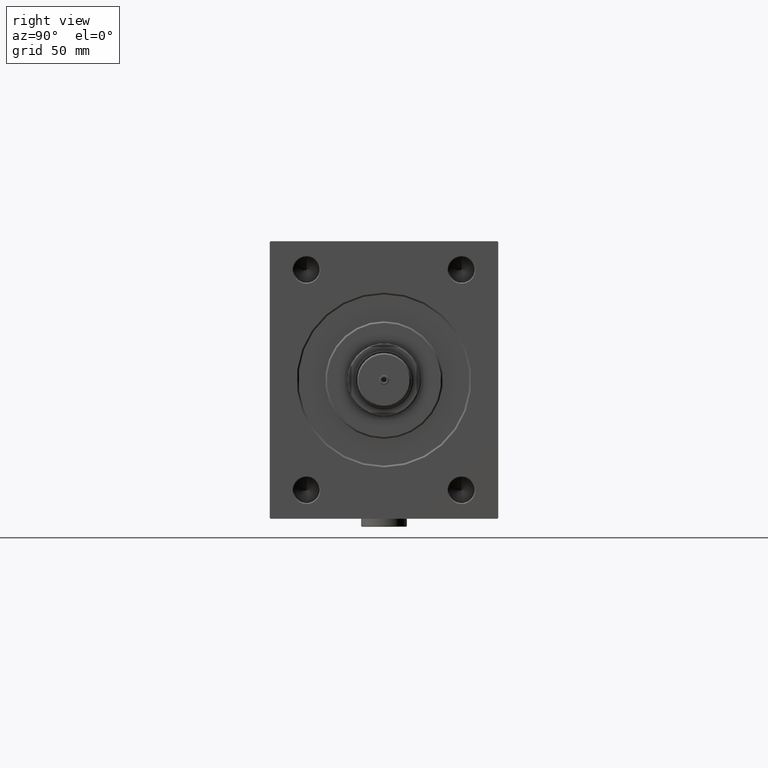
[diagram: clean part render]
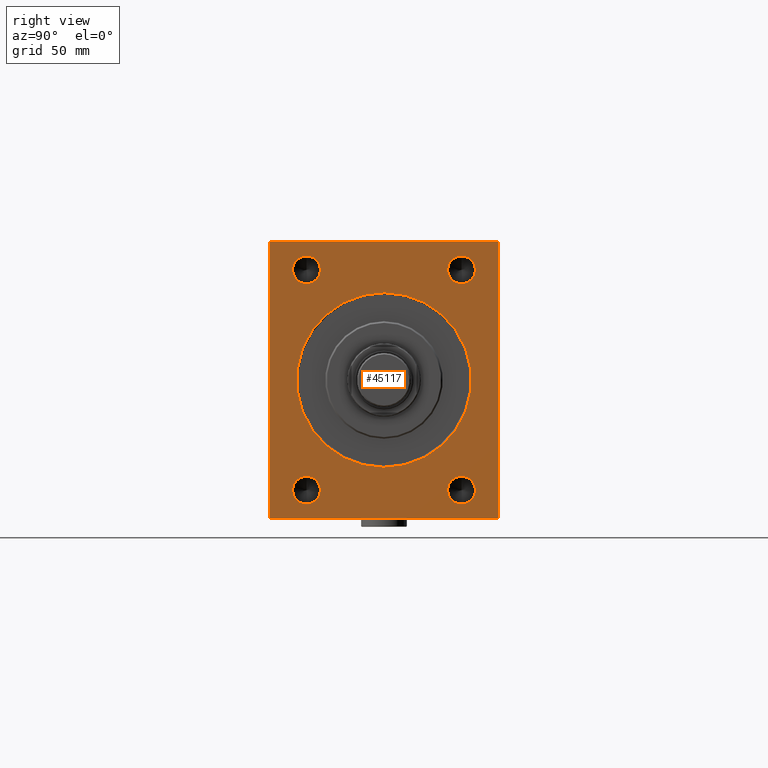
[diagram: same view with one face highlighted and labeled with its STEP entity id]
A machine part, right view. The second image highlights one B-rep face of the part: STEP entity #45117.
In plain terms, the highlighted planar face has unit normal (-1, 0, 0).
Its self-contained STEP definition (entity closure, byte-faithful):
#504 = CARTESIAN_POINT ( 'NONE',  ( 0.000000000000000000, 6.551860375438342259E-15, -53.50000000000002132 ) ) ;
#1245 = CARTESIAN_POINT ( 'NONE',  ( 0.000000000000000000, 69.50000000000007105, -85.00000000000001421 ) ) ;
#1451 = DIRECTION ( 'NONE',  ( 1.000000000000000000, 0.000000000000000000, 0.000000000000000000 ) ) ;
#2074 = CARTESIAN_POINT ( 'NONE',  ( 0.000000000000000000, -69.99999999999998579, 84.99999999999998579 ) ) ;
#2235 = AXIS2_PLACEMENT_3D ( 'NONE', #2305, #35380, #42531 ) ;
#2305 = CARTESIAN_POINT ( 'NONE',  ( 0.000000000000000000, -47.50000000000000000, -67.50000000000000000 ) ) ;
#2401 = EDGE_CURVE ( 'NONE', #9576, #45471, #21362, .T. ) ;
#2471 = CARTESIAN_POINT ( 'NONE',  ( 0.000000000000000000, -47.50000000000000000, -67.50000000000000000 ) ) ;
#2475 = EDGE_LOOP ( 'NONE', ( #38406, #47075 ) ) ;
#2644 = ORIENTED_EDGE ( 'NONE', *, *, #18650, .F. ) ;
#2695 = VERTEX_POINT ( 'NONE', #48386 ) ;
#2790 = PLANE ( 'NONE',  #19190 ) ;
#3066 = CIRCLE ( 'NONE', #10156, 8.500000000000063949 ) ;
#3119 = VERTEX_POINT ( 'NONE', #18852 ) ;
#3301 = CARTESIAN_POINT ( 'NONE',  ( 0.000000000000000000, -47.50000000000000000, -58.99999999999994316 ) ) ;
#3563 = VECTOR ( 'NONE', #3678, 1000.000000000000114 ) ;
#3678 = DIRECTION ( 'NONE',  ( -0.000000000000000000, 0.7071067811865573427, 0.7071067811865376918 ) ) ;
#5175 = CIRCLE ( 'NONE', #32718, 53.50000000000002132 ) ;
#5219 = ORIENTED_EDGE ( 'NONE', *, *, #28905, .T. ) ;
#5260 = CARTESIAN_POINT ( 'NONE',  ( 0.000000000000000000, 47.50000000000000000, 67.50000000000000000 ) ) ;
#5559 = DIRECTION ( 'NONE',  ( -0.000000000000000000, 0.7071067811865279218, -0.7071067811865672237 ) ) ;
#5811 = ORIENTED_EDGE ( 'NONE', *, *, #26820, .T. ) ;
#6160 = LINE ( 'NONE', #43878, #11089 ) ;
#6365 = ORIENTED_EDGE ( 'NONE', *, *, #30107, .T. ) ;
#6844 = VERTEX_POINT ( 'NONE', #16924 ) ;
#6990 = CIRCLE ( 'NONE', #2235, 8.500000000000063949 ) ;
#7164 = CARTESIAN_POINT ( 'NONE',  ( 0.000000000000000000, -47.50000000000000000, 58.99999999999994316 ) ) ;
#7228 = LINE ( 'NONE', #22512, #13605 ) ;
#7271 = EDGE_LOOP ( 'NONE', ( #6365, #12009 ) ) ;
#7465 = DIRECTION ( 'NONE',  ( 1.000000000000000000, 0.000000000000000000, 0.000000000000000000 ) ) ;
#8220 = EDGE_CURVE ( 'NONE', #26794, #41539, #26898, .T. ) ;
#8273 = ORIENTED_EDGE ( 'NONE', *, *, #8220, .T. ) ;
#8385 = CIRCLE ( 'NONE', #9203, 8.500000000000063949 ) ;
#8803 = EDGE_LOOP ( 'NONE', ( #41398, #44400 ) ) ;
#9203 = AXIS2_PLACEMENT_3D ( 'NONE', #5260, #24720, #39763 ) ;
#9576 = VERTEX_POINT ( 'NONE', #3301 ) ;
#9640 = DIRECTION ( 'NONE',  ( 1.000000000000000000, 0.000000000000000000, 0.000000000000000000 ) ) ;
#10100 = DIRECTION ( 'NONE',  ( 0.000000000000000000, -1.632680918566406300E-16, 1.000000000000000000 ) ) ;
#10156 = AXIS2_PLACEMENT_3D ( 'NONE', #31055, #1451, #16504 ) ;
#10788 = VECTOR ( 'NONE', #45765, 999.9999999999998863 ) ;
#10805 = CARTESIAN_POINT ( 'NONE',  ( 0.000000000000000000, 70.00000000000002842, -84.50000000000009948 ) ) ;
#11089 = VECTOR ( 'NONE', #10100, 1000.000000000000000 ) ;
#11290 = CARTESIAN_POINT ( 'NONE',  ( 0.000000000000000000, 0.000000000000000000, 0.000000000000000000 ) ) ;
#11921 = CIRCLE ( 'NONE', #40236, 8.500000000000063949 ) ;
#12009 = ORIENTED_EDGE ( 'NONE', *, *, #22874, .T. ) ;
#12605 = DIRECTION ( 'NONE',  ( 1.000000000000000000, 0.000000000000000000, 0.000000000000000000 ) ) ;
#12688 = VERTEX_POINT ( 'NONE', #504 ) ;
#12896 = CARTESIAN_POINT ( 'NONE',  ( 0.000000000000000000, -47.50000000000000000, 67.50000000000000000 ) ) ;
#13578 = DIRECTION ( 'NONE',  ( 0.000000000000000000, 0.000000000000000000, -1.000000000000000000 ) ) ;
#13605 = VECTOR ( 'NONE', #13916, 1000.000000000000000 ) ;
#13626 = CARTESIAN_POINT ( 'NONE',  ( 0.000000000000000000, -69.99999999999998579, -84.49999999999998579 ) ) ;
#13916 = DIRECTION ( 'NONE',  ( 0.000000000000000000, 1.000000000000000000, 0.000000000000000000 ) ) ;
#15153 = EDGE_CURVE ( 'NONE', #26870, #2695, #42807, .T. ) ;
#15689 = LINE ( 'NONE', #30718, #10788 ) ;
#16313 = CARTESIAN_POINT ( 'NONE',  ( 0.000000000000000000, -69.49999999999998579, -85.00000000000001421 ) ) ;
#16420 = DIRECTION ( 'NONE',  ( 0.000000000000000000, -1.000000000000000000, -1.982541115402065110E-16 ) ) ;
#16504 = DIRECTION ( 'NONE',  ( 0.000000000000000000, 0.000000000000000000, -1.000000000000000000 ) ) ;
#16666 = AXIS2_PLACEMENT_3D ( 'NONE', #2471, #9640, #17514 ) ;
#16672 = CARTESIAN_POINT ( 'NONE',  ( 0.000000000000000000, 69.50000000000008527, 85.00000000000001421 ) ) ;
#16696 = EDGE_CURVE ( 'NONE', #18371, #44730, #33762, .T. ) ;
#16924 = CARTESIAN_POINT ( 'NONE',  ( 0.000000000000000000, 47.50000000000000000, -76.00000000000007105 ) ) ;
#17104 = CIRCLE ( 'NONE', #47816, 8.500000000000063949 ) ;
#17262 = AXIS2_PLACEMENT_3D ( 'NONE', #12896, #46907, #21233 ) ;
#17514 = DIRECTION ( 'NONE',  ( 0.000000000000000000, 0.000000000000000000, -1.000000000000000000 ) ) ;
#17841 = DIRECTION ( 'NONE',  ( 0.000000000000000000, 0.000000000000000000, -1.000000000000000000 ) ) ;
#17990 = CARTESIAN_POINT ( 'NONE',  ( 0.000000000000000000, 69.50000000000008527, 85.00000000000001421 ) ) ;
#18371 = VERTEX_POINT ( 'NONE', #33778 ) ;
#18442 = DIRECTION ( 'NONE',  ( 0.000000000000000000, 0.000000000000000000, -1.000000000000000000 ) ) ;
#18650 = EDGE_CURVE ( 'NONE', #26870, #44730, #26018, .T. ) ;
#18658 = ORIENTED_EDGE ( 'NONE', *, *, #34836, .T. ) ;
#18802 = EDGE_CURVE ( 'NONE', #18371, #41539, #43033, .T. ) ;
#18852 = CARTESIAN_POINT ( 'NONE',  ( 0.000000000000000000, -47.50000000000000000, 76.00000000000007105 ) ) ;
#19190 = AXIS2_PLACEMENT_3D ( 'NONE', #44702, #7465, #17841 ) ;
#19391 = VECTOR ( 'NONE', #28222, 1000.000000000000000 ) ;
#19431 = VERTEX_POINT ( 'NONE', #7164 ) ;
#19537 = VERTEX_POINT ( 'NONE', #1245 ) ;
#19674 = VERTEX_POINT ( 'NONE', #10805 ) ;
#20175 = CIRCLE ( 'NONE', #24118, 8.500000000000063949 ) ;
#20793 = EDGE_CURVE ( 'NONE', #19674, #19537, #15689, .T. ) ;
#21212 = CARTESIAN_POINT ( 'NONE',  ( 0.000000000000000000, -69.49999999999998579, -85.00000000000001421 ) ) ;
#21233 = DIRECTION ( 'NONE',  ( 0.000000000000000000, 0.000000000000000000, -1.000000000000000000 ) ) ;
#21240 = CIRCLE ( 'NONE', #34630, 53.50000000000002132 ) ;
#21362 = CIRCLE ( 'NONE', #16666, 8.500000000000063949 ) ;
#21435 = CARTESIAN_POINT ( 'NONE',  ( 0.000000000000000000, 47.50000000000000000, 67.50000000000000000 ) ) ;
#22017 = FACE_BOUND ( 'NONE', #8803, .T. ) ;
#22208 = EDGE_CURVE ( 'NONE', #12688, #36925, #5175, .T. ) ;
#22247 = FACE_BOUND ( 'NONE', #2475, .T. ) ;
#22310 = CARTESIAN_POINT ( 'NONE',  ( 0.000000000000000000, 70.00000000000000000, 85.00000000000001421 ) ) ;
#22512 = CARTESIAN_POINT ( 'NONE',  ( 0.000000000000000000, -69.99999999999998579, -85.00000000000001421 ) ) ;
#22874 = EDGE_CURVE ( 'NONE', #6844, #31263, #20175, .T. ) ;
#23188 = CARTESIAN_POINT ( 'NONE',  ( 0.000000000000000000, -47.50000000000000000, -76.00000000000007105 ) ) ;
#23342 = ORIENTED_EDGE ( 'NONE', *, *, #38842, .F. ) ;
#24118 = AXIS2_PLACEMENT_3D ( 'NONE', #24409, #12605, #24178 ) ;
#24178 = DIRECTION ( 'NONE',  ( 0.000000000000000000, 0.000000000000000000, -1.000000000000000000 ) ) ;
#24368 = EDGE_CURVE ( 'NONE', #34502, #41907, #8385, .T. ) ;
#24409 = CARTESIAN_POINT ( 'NONE',  ( 0.000000000000000000, 47.50000000000000000, -67.50000000000000000 ) ) ;
#24720 = DIRECTION ( 'NONE',  ( 1.000000000000000000, 0.000000000000000000, 0.000000000000000000 ) ) ;
#24918 = DIRECTION ( 'NONE',  ( 1.000000000000000000, 0.000000000000000000, 0.000000000000000000 ) ) ;
#25157 = EDGE_LOOP ( 'NONE', ( #40429, #5219 ) ) ;
#26018 = LINE ( 'NONE', #22310, #45392 ) ;
#26200 = FACE_BOUND ( 'NONE', #7271, .T. ) ;
#26323 = DIRECTION ( 'NONE',  ( 1.000000000000000000, 0.000000000000000000, 0.000000000000000000 ) ) ;
#26794 = VERTEX_POINT ( 'NONE', #21212 ) ;
#26820 = EDGE_CURVE ( 'NONE', #3119, #19431, #17104, .T. ) ;
#26870 = VERTEX_POINT ( 'NONE', #17990 ) ;
#26898 = LINE ( 'NONE', #16313, #45192 ) ;
#27177 = VECTOR ( 'NONE', #5559, 1000.000000000000000 ) ;
#27369 = ORIENTED_EDGE ( 'NONE', *, *, #16696, .T. ) ;
#28222 = DIRECTION ( 'NONE',  ( 0.000000000000000000, 0.000000000000000000, -1.000000000000000000 ) ) ;
#28905 = EDGE_CURVE ( 'NONE', #45471, #9576, #6990, .T. ) ;
#29900 = CARTESIAN_POINT ( 'NONE',  ( 0.000000000000000000, 0.000000000000000000, 53.50000000000002132 ) ) ;
#30052 = CARTESIAN_POINT ( 'NONE',  ( 0.000000000000000000, -69.99999999999998579, 84.50000000000001421 ) ) ;
#30107 = EDGE_CURVE ( 'NONE', #31263, #6844, #3066, .T. ) ;
#30718 = CARTESIAN_POINT ( 'NONE',  ( 0.000000000000000000, 70.00000000000002842, -84.50000000000009948 ) ) ;
#31055 = CARTESIAN_POINT ( 'NONE',  ( 0.000000000000000000, 47.50000000000000000, -67.50000000000000000 ) ) ;
#31263 = VERTEX_POINT ( 'NONE', #48750 ) ;
#31916 = EDGE_LOOP ( 'NONE', ( #34337, #27369, #2644, #48063, #23342, #46536, #45587, #8273 ) ) ;
#32058 = CARTESIAN_POINT ( 'NONE',  ( 0.000000000000000000, 47.50000000000000000, 76.00000000000007105 ) ) ;
#32718 = AXIS2_PLACEMENT_3D ( 'NONE', #11290, #26323, #18442 ) ;
#32778 = DIRECTION ( 'NONE',  ( 0.000000000000000000, 0.000000000000000000, -1.000000000000000000 ) ) ;
#33358 = FACE_BOUND ( 'NONE', #25157, .T. ) ;
#33762 = LINE ( 'NONE', #30052, #3563 ) ;
#33778 = CARTESIAN_POINT ( 'NONE',  ( 0.000000000000000000, -69.99999999999998579, 84.50000000000001421 ) ) ;
#34337 = ORIENTED_EDGE ( 'NONE', *, *, #18802, .F. ) ;
#34502 = VERTEX_POINT ( 'NONE', #42036 ) ;
#34630 = AXIS2_PLACEMENT_3D ( 'NONE', #39326, #38353, #35388 ) ;
#34836 = EDGE_CURVE ( 'NONE', #19431, #3119, #36954, .T. ) ;
#35349 = EDGE_CURVE ( 'NONE', #36925, #12688, #21240, .T. ) ;
#35380 = DIRECTION ( 'NONE',  ( 1.000000000000000000, 0.000000000000000000, 0.000000000000000000 ) ) ;
#35388 = DIRECTION ( 'NONE',  ( 0.000000000000000000, 0.000000000000000000, -1.000000000000000000 ) ) ;
#36576 = FACE_BOUND ( 'NONE', #40684, .T. ) ;
#36925 = VERTEX_POINT ( 'NONE', #29900 ) ;
#36954 = CIRCLE ( 'NONE', #17262, 8.500000000000063949 ) ;
#38353 = DIRECTION ( 'NONE',  ( 1.000000000000000000, 0.000000000000000000, 0.000000000000000000 ) ) ;
#38406 = ORIENTED_EDGE ( 'NONE', *, *, #38795, .T. ) ;
#38795 = EDGE_CURVE ( 'NONE', #41907, #34502, #11921, .T. ) ;
#38842 = EDGE_CURVE ( 'NONE', #19674, #2695, #6160, .T. ) ;
#39326 = CARTESIAN_POINT ( 'NONE',  ( 0.000000000000000000, 0.000000000000000000, 0.000000000000000000 ) ) ;
#39763 = DIRECTION ( 'NONE',  ( 0.000000000000000000, 0.000000000000000000, -1.000000000000000000 ) ) ;
#40171 = DIRECTION ( 'NONE',  ( 1.000000000000000000, 0.000000000000000000, 0.000000000000000000 ) ) ;
#40236 = AXIS2_PLACEMENT_3D ( 'NONE', #21435, #40171, #32778 ) ;
#40429 = ORIENTED_EDGE ( 'NONE', *, *, #2401, .T. ) ;
#40684 = EDGE_LOOP ( 'NONE', ( #5811, #18658 ) ) ;
#41242 = FACE_OUTER_BOUND ( 'NONE', #31916, .T. ) ;
#41398 = ORIENTED_EDGE ( 'NONE', *, *, #35349, .T. ) ;
#41539 = VERTEX_POINT ( 'NONE', #13626 ) ;
#41826 = EDGE_CURVE ( 'NONE', #26794, #19537, #7228, .T. ) ;
#41907 = VERTEX_POINT ( 'NONE', #32058 ) ;
#42036 = CARTESIAN_POINT ( 'NONE',  ( 0.000000000000000000, 47.50000000000000000, 58.99999999999994316 ) ) ;
#42531 = DIRECTION ( 'NONE',  ( 0.000000000000000000, 0.000000000000000000, -1.000000000000000000 ) ) ;
#42807 = LINE ( 'NONE', #16672, #27177 ) ;
#43033 = LINE ( 'NONE', #2074, #19391 ) ;
#43878 = CARTESIAN_POINT ( 'NONE',  ( 0.000000000000000000, 70.00000000000002842, -85.00000000000001421 ) ) ;
#44400 = ORIENTED_EDGE ( 'NONE', *, *, #22208, .T. ) ;
#44702 = CARTESIAN_POINT ( 'NONE',  ( 0.000000000000000000, 0.000000000000000000, 0.000000000000000000 ) ) ;
#44730 = VERTEX_POINT ( 'NONE', #45371 ) ;
#45117 = ADVANCED_FACE ( 'NONE', ( #22017, #33358, #36576, #22247, #26200, #41242 ), #2790, .F. ) ;
#45192 = VECTOR ( 'NONE', #45890, 1000.000000000000000 ) ;
#45371 = CARTESIAN_POINT ( 'NONE',  ( 0.000000000000000000, -69.50000000000000000, 84.99999999999998579 ) ) ;
#45392 = VECTOR ( 'NONE', #16420, 1000.000000000000000 ) ;
#45471 = VERTEX_POINT ( 'NONE', #23188 ) ;
#45587 = ORIENTED_EDGE ( 'NONE', *, *, #41826, .F. ) ;
#45765 = DIRECTION ( 'NONE',  ( 0.000000000000000000, -0.7071067811865771047, -0.7071067811865180408 ) ) ;
#45890 = DIRECTION ( 'NONE',  ( -0.000000000000000000, -0.7071067811865279218, 0.7071067811865672237 ) ) ;
#46536 = ORIENTED_EDGE ( 'NONE', *, *, #20793, .T. ) ;
#46907 = DIRECTION ( 'NONE',  ( 1.000000000000000000, 0.000000000000000000, 0.000000000000000000 ) ) ;
#47075 = ORIENTED_EDGE ( 'NONE', *, *, #24368, .T. ) ;
#47357 = CARTESIAN_POINT ( 'NONE',  ( 0.000000000000000000, -47.50000000000000000, 67.50000000000000000 ) ) ;
#47816 = AXIS2_PLACEMENT_3D ( 'NONE', #47357, #24918, #13578 ) ;
#48063 = ORIENTED_EDGE ( 'NONE', *, *, #15153, .T. ) ;
#48386 = CARTESIAN_POINT ( 'NONE',  ( 0.000000000000000000, 70.00000000000000000, 84.50000000000007105 ) ) ;
#48750 = CARTESIAN_POINT ( 'NONE',  ( 0.000000000000000000, 47.50000000000000000, -58.99999999999994316 ) ) ;